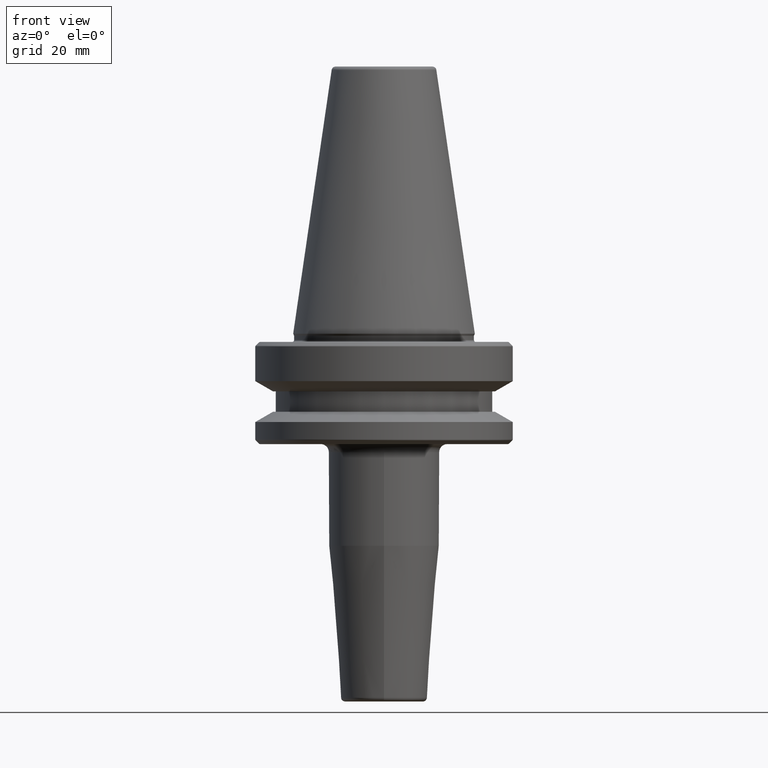
[diagram: clean part render]
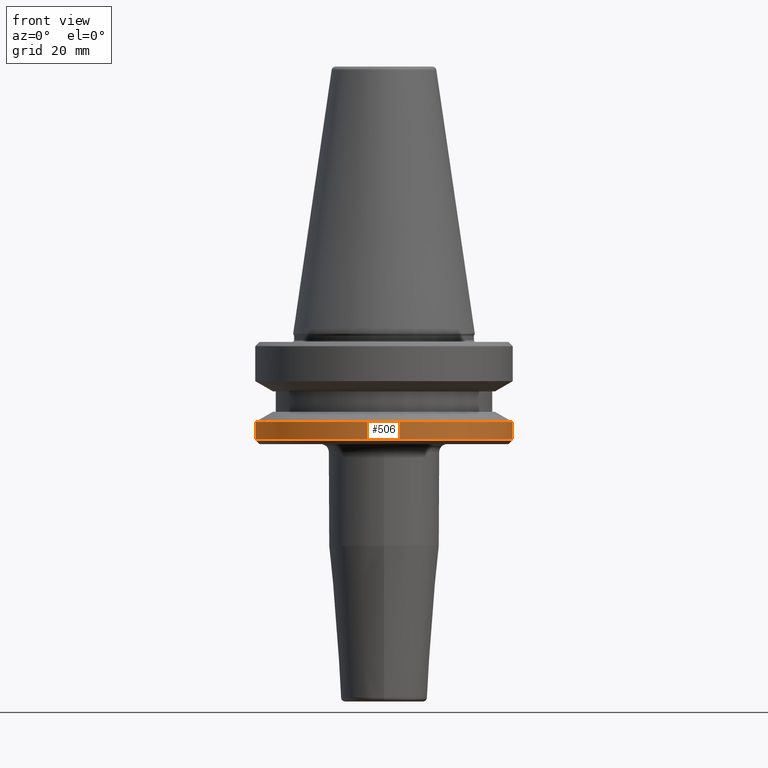
[diagram: same view with one face highlighted and labeled with its STEP entity id]
A machine part, front view. The second image highlights one B-rep face of the part: STEP entity #506.
In plain terms, the highlighted cylindrical surface (partial cylindrical patch) has radius 31.5 mm, axis along (-0, -0, 1).
Its self-contained STEP definition (entity closure, byte-faithful):
#36 = CYLINDRICAL_SURFACE ( 'NONE', #644, 31.50000000000000000 ) ;
#110 = EDGE_LOOP ( 'NONE', ( #894, #147, #1224, #1198 ) ) ;
#114 = AXIS2_PLACEMENT_3D ( 'NONE', #546, #1243, #650 ) ;
#136 = EDGE_CURVE ( 'NONE', #249, #388, #325, .T. ) ;
#147 = ORIENTED_EDGE ( 'NONE', *, *, #472, .T. ) ;
#161 = DIRECTION ( 'NONE',  ( -0.0000000000000000000, -0.0000000000000000000, 1.000000000000000000 ) ) ;
#236 = CARTESIAN_POINT ( 'NONE',  ( 31.50000000000000000, 0.0000000000000000000, -25.83431457505076900 ) ) ;
#244 = VERTEX_POINT ( 'NONE', #236 ) ;
#249 = VERTEX_POINT ( 'NONE', #1118 ) ;
#325 = CIRCLE ( 'NONE', #627, 31.50000000000000000 ) ;
#341 = CARTESIAN_POINT ( 'NONE',  ( 31.50000000000000000, 0.0000000000000000000, -21.60014200631675500 ) ) ;
#371 = CIRCLE ( 'NONE', #114, 31.50000000000000000 ) ;
#388 = VERTEX_POINT ( 'NONE', #341 ) ;
#455 = EDGE_CURVE ( 'NONE', #1112, #249, #464, .T. ) ;
#464 = LINE ( 'NONE', #741, #879 ) ;
#468 = DIRECTION ( 'NONE',  ( -0.0000000000000000000, -0.0000000000000000000, 1.000000000000000000 ) ) ;
#472 = EDGE_CURVE ( 'NONE', #1112, #244, #371, .T. ) ;
#506 = ADVANCED_FACE ( 'NONE', ( #600 ), #36, .T. ) ;
#521 = EDGE_CURVE ( 'NONE', #244, #388, #636, .T. ) ;
#546 = CARTESIAN_POINT ( 'NONE',  ( 0.0000000000000000000, 0.0000000000000000000, -25.83431457505076900 ) ) ;
#600 = FACE_OUTER_BOUND ( 'NONE', #110, .T. ) ;
#627 = AXIS2_PLACEMENT_3D ( 'NONE', #935, #161, #840 ) ;
#636 = LINE ( 'NONE', #1150, #883 ) ;
#644 = AXIS2_PLACEMENT_3D ( 'NONE', #1041, #1146, #941 ) ;
#650 = DIRECTION ( 'NONE',  ( 1.000000000000000000, 0.0000000000000000000, 0.0000000000000000000 ) ) ;
#741 = CARTESIAN_POINT ( 'NONE',  ( -31.50000000000000000, 3.857637417314162700E-015, 69.75694866325665100 ) ) ;
#791 = DIRECTION ( 'NONE',  ( -0.0000000000000000000, -0.0000000000000000000, 1.000000000000000000 ) ) ;
#840 = DIRECTION ( 'NONE',  ( 1.000000000000000000, 0.0000000000000000000, 0.0000000000000000000 ) ) ;
#879 = VECTOR ( 'NONE', #791, 1000.000000000000000 ) ;
#883 = VECTOR ( 'NONE', #468, 1000.000000000000000 ) ;
#894 = ORIENTED_EDGE ( 'NONE', *, *, #455, .F. ) ;
#935 = CARTESIAN_POINT ( 'NONE',  ( 0.0000000000000000000, 0.0000000000000000000, -21.60014200631675500 ) ) ;
#941 = DIRECTION ( 'NONE',  ( 1.000000000000000000, 0.0000000000000000000, 0.0000000000000000000 ) ) ;
#1041 = CARTESIAN_POINT ( 'NONE',  ( 0.0000000000000000000, 0.0000000000000000000, 69.75694866325665100 ) ) ;
#1055 = CARTESIAN_POINT ( 'NONE',  ( -31.50000000000000000, 3.857637417314162700E-015, -25.83431457505076900 ) ) ;
#1112 = VERTEX_POINT ( 'NONE', #1055 ) ;
#1118 = CARTESIAN_POINT ( 'NONE',  ( -31.50000000000000000, 3.857637417314162700E-015, -21.60014200631675500 ) ) ;
#1146 = DIRECTION ( 'NONE',  ( -0.0000000000000000000, -0.0000000000000000000, 1.000000000000000000 ) ) ;
#1150 = CARTESIAN_POINT ( 'NONE',  ( 31.50000000000000000, 0.0000000000000000000, 69.75694866325665100 ) ) ;
#1198 = ORIENTED_EDGE ( 'NONE', *, *, #136, .F. ) ;
#1224 = ORIENTED_EDGE ( 'NONE', *, *, #521, .T. ) ;
#1243 = DIRECTION ( 'NONE',  ( -0.0000000000000000000, -0.0000000000000000000, 1.000000000000000000 ) ) ;